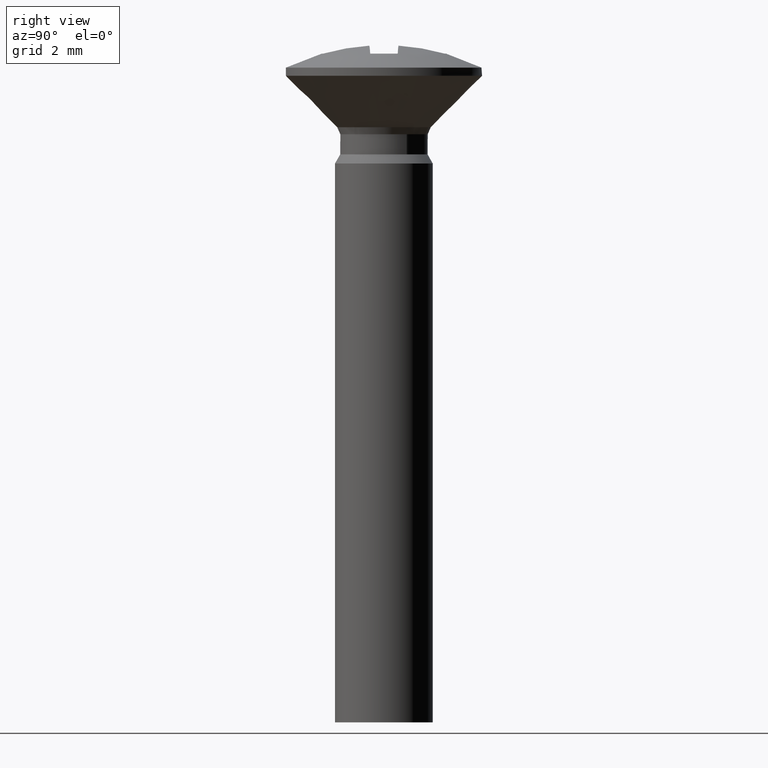
[diagram: clean part render]
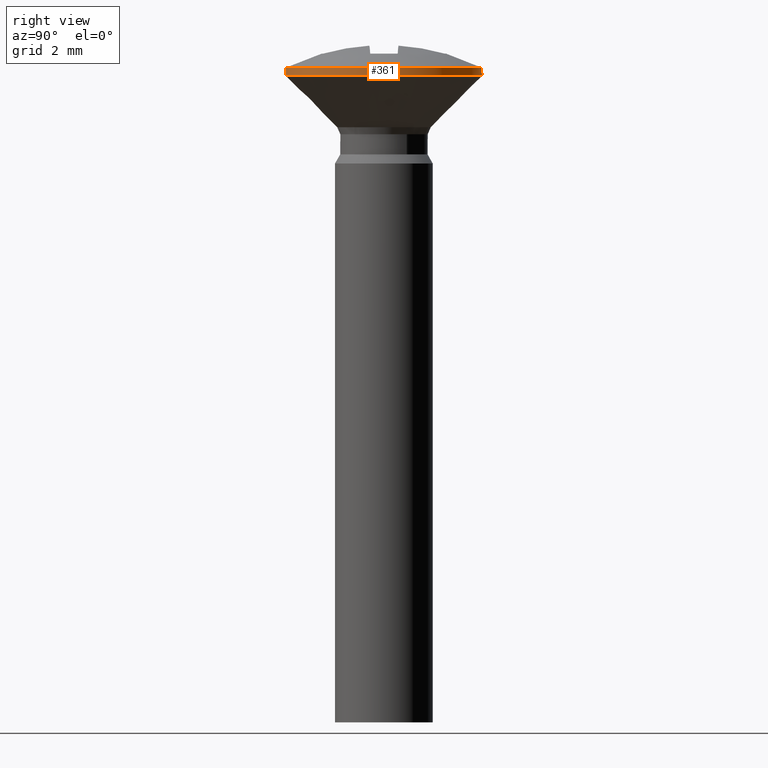
[diagram: same view with one face highlighted and labeled with its STEP entity id]
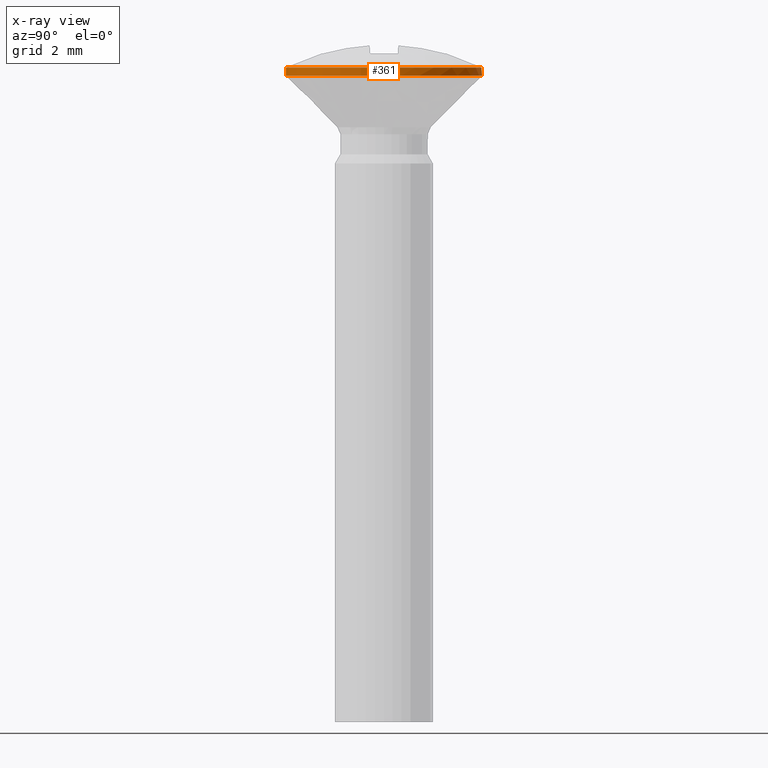
[diagram: x-ray of the same camera — body ghosted, the highlighted face saturated]
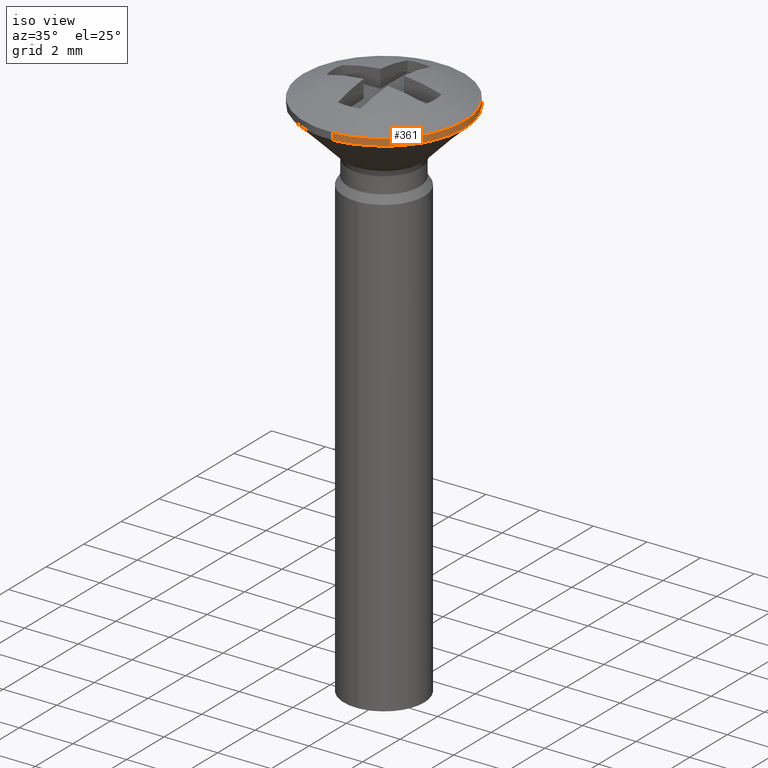
[diagram: same view with one face highlighted and labeled with its STEP entity id]
A machine part, right view. The second image highlights one B-rep face of the part: STEP entity #361.
The next image is the same camera in x-ray: the body ghosted, the highlighted face saturated — about 0% of this face is hidden behind the body in this view.
A second angle (iso view) of the same face is appended — the face is thin or edge-on in the first view.
In plain terms, the highlighted face is a freeform B-spline surface patch.
Its self-contained STEP definition (entity closure, byte-faithful):
#66=CARTESIAN_POINT('',(0.183145739371230,-2.994406369537615,-0.249999999999993));
#67=VERTEX_POINT('',#66);
#124=CARTESIAN_POINT('',(0.751138588778761,2.904441413269793,-0.250001816337524));
#125=VERTEX_POINT('',#124);
#131=CARTESIAN_POINT('',(3.0,0.0,-0.249999999999993));
#132=VERTEX_POINT('',#131);
#133=CARTESIAN_POINT('',(0.751138588778761,2.904441413269793,-0.250001816337524));
#134=CARTESIAN_POINT('',(2.999999772627413,2.322848104502776,-0.250000908168758));
#135=CARTESIAN_POINT('',(3.0,0.0,-0.249999999999993));
#143=(BOUNDED_CURVE()B_SPLINE_CURVE(2,(#133,#134,#135),.UNSPECIFIED.,.F.,.U.)B_SPLINE_CURVE_WITH_KNOTS((3,3),(0.292726175648459,0.500000000000000),.UNSPECIFIED.)CURVE()GEOMETRIC_REPRESENTATION_ITEM()RATIONAL_B_SPLINE_CURVE((0.916996237852994,0.757163609639613,1.0))REPRESENTATION_ITEM(''));
#144=EDGE_CURVE('',#125,#132,#143,.T.);
#146=CARTESIAN_POINT('',(3.0,0.0,-0.249999999999993));
#147=CARTESIAN_POINT('',(3.000000060375853,-2.822119187839429,-0.249999999999993));
#148=CARTESIAN_POINT('',(0.183145739371230,-2.994406369537616,-0.249999999999993));
#156=(BOUNDED_CURVE()B_SPLINE_CURVE(2,(#146,#147,#148),.UNSPECIFIED.,.F.,.U.)B_SPLINE_CURVE_WITH_KNOTS((3,3),(0.500000000000000,0.739332962241107),.UNSPECIFIED.)CURVE()GEOMETRIC_REPRESENTATION_ITEM()RATIONAL_B_SPLINE_CURVE((1.0,0.719603993284175,0.976072041671355))REPRESENTATION_ITEM(''));
#157=EDGE_CURVE('',#132,#67,#156,.T.);
#195=CARTESIAN_POINT('',(-0.354102937449944,2.979030543224859,-0.249999999999993));
#196=VERTEX_POINT('',#195);
#210=CARTESIAN_POINT('',(-0.354102937449944,2.979030543224859,-0.249999999999993));
#211=CARTESIAN_POINT('',(-0.177672627309790,3.000001377348288,-0.250000286313322));
#212=CARTESIAN_POINT('',(-0.000000303757906,3.000000781652118,-0.250000576973715));
#213=CARTESIAN_POINT('',(0.381647315832808,2.999999502071705,-0.250001201324458));
#214=CARTESIAN_POINT('',(0.751138588778761,2.904441413269793,-0.250001816337524));
#222=(BOUNDED_CURVE()B_SPLINE_CURVE(2,(#210,#211,#212,#213,#214),.UNSPECIFIED.,.F.,.U.)B_SPLINE_CURVE_WITH_KNOTS((3,2,3),(0.229562473514940,0.250000000000000,0.292726175648459),.UNSPECIFIED.)CURVE()GEOMETRIC_REPRESENTATION_ITEM()RATIONAL_B_SPLINE_CURVE((0.956026754186506,0.976055948332823,1.0,0.949943171546935,0.916996237852994))REPRESENTATION_ITEM(''));
#223=EDGE_CURVE('',#196,#125,#222,.T.);
#290=CARTESIAN_POINT('',(-0.354103170904791,2.979032507361668,0.006249370090547));
#291=CARTESIAN_POINT('',(-0.268844540423030,2.989166787979952,0.006249370090547));
#292=CARTESIAN_POINT('',(-0.183145860107981,2.994408343811458,0.006249370090547));
#293=CARTESIAN_POINT('',(2.811262483703477,3.177554203919440,0.006249370090547));
#294=CARTESIAN_POINT('',(2.994408343811458,0.183145860107981,0.006249370090547));
#295=CARTESIAN_POINT('',(3.177554203919440,-2.811262483703477,0.006249370090547));
#296=CARTESIAN_POINT('',(0.183145860107981,-2.994408343811458,0.006249370090547));
#297=CARTESIAN_POINT('',(-0.354103170904791,2.979032507361668,-0.256406234252257));
#298=CARTESIAN_POINT('',(-0.268844540423030,2.989166787979952,-0.256406234252257));
#299=CARTESIAN_POINT('',(-0.183145860107981,2.994408343811458,-0.256406234252257));
#300=CARTESIAN_POINT('',(2.811262483703477,3.177554203919440,-0.256406234252257));
#301=CARTESIAN_POINT('',(2.994408343811458,0.183145860107981,-0.256406234252257));
#302=CARTESIAN_POINT('',(3.177554203919440,-2.811262483703477,-0.256406234252257));
#303=CARTESIAN_POINT('',(0.183145860107981,-2.994408343811458,-0.256406234252257));
#311=(BOUNDED_SURFACE()B_SPLINE_SURFACE(2,1,((#290,#297),(#291,#298),(#292,#299),(#293,#300),(#294,#301),(#295,#302),(#296,#303)),.UNSPECIFIED.,.F.,.F.,.U.)B_SPLINE_SURFACE_WITH_KNOTS((3,2,2,3),(2,2),(0.0,0.198822772114696,5.169392074982079,10.139961377849460),(0.0,0.262655604342803),.UNSPECIFIED.)GEOMETRIC_REPRESENTATION_ITEM()RATIONAL_B_SPLINE_SURFACE(((0.977505800795127,0.977505800795127),(0.988284271247462,0.988284271247462),(1.0,1.0),(0.707106781186548,0.707106781186548),(1.0,1.0),(0.707106781186548,0.707106781186548),(1.0,1.0)))REPRESENTATION_ITEM('')SURFACE());
#312=ORIENTED_EDGE('',*,*,#223,.F.);
#313=CARTESIAN_POINT('',(-0.354103404384466,2.979034471495527,-0.000000614545808));
#314=VERTEX_POINT('',#313);
#315=CARTESIAN_POINT('',(-0.354103404384466,2.979034471495527,-0.000000614545808));
#316=CARTESIAN_POINT('',(-0.354102937449944,2.979030543224859,-0.249999999999993));
#317=QUASI_UNIFORM_CURVE('',1,(#315,#316),.UNSPECIFIED.,.F.,.U.);
#318=EDGE_CURVE('',#314,#196,#317,.T.);
#319=ORIENTED_EDGE('',*,*,#318,.F.);
#320=CARTESIAN_POINT('',(3.000007911848910,0.0,-0.000000614545808));
#321=VERTEX_POINT('',#320);
#322=CARTESIAN_POINT('',(-0.354103404384466,2.979034471495528,-0.000000614545808));
#323=CARTESIAN_POINT('',(-0.177672600207381,3.000005999371665,-0.000000614545808));
#324=CARTESIAN_POINT('',(0.000000220413464,3.000006057533757,-0.000000614545808));
#325=CARTESIAN_POINT('',(3.000008015528745,3.000007039601425,-0.000000614545808));
#326=CARTESIAN_POINT('',(3.000007911848910,0.0,-0.000000614545808));
#334=(BOUNDED_CURVE()B_SPLINE_CURVE(2,(#322,#323,#324,#325,#326),.UNSPECIFIED.,.F.,.U.)B_SPLINE_CURVE_WITH_KNOTS((3,2,3),(0.229562473514940,0.250000000000000,0.500000000000000),.UNSPECIFIED.)CURVE()GEOMETRIC_REPRESENTATION_ITEM()RATIONAL_B_SPLINE_CURVE((0.956026754186505,0.976055948332822,1.0,0.707106781186547,1.0))REPRESENTATION_ITEM(''));
#335=EDGE_CURVE('',#314,#321,#334,.T.);
#336=ORIENTED_EDGE('',*,*,#335,.T.);
#337=CARTESIAN_POINT('',(0.183145980874648,-2.994410318083473,-0.000000614545808));
#338=VERTEX_POINT('',#337);
#339=CARTESIAN_POINT('',(3.000007911848910,0.0,-0.000000614545808));
#340=CARTESIAN_POINT('',(3.000007851473057,-2.822124656290762,-0.000000614545808));
#341=CARTESIAN_POINT('',(0.183145980874648,-2.994410318083473,-0.000000614545808));
#349=(BOUNDED_CURVE()B_SPLINE_CURVE(2,(#339,#340,#341),.UNSPECIFIED.,.F.,.U.)B_SPLINE_CURVE_WITH_KNOTS((3,3),(0.500000000000000,0.739332962241106),.UNSPECIFIED.)CURVE()GEOMETRIC_REPRESENTATION_ITEM()RATIONAL_B_SPLINE_CURVE((1.0,0.719603993284176,0.976072041671354))REPRESENTATION_ITEM(''));
#350=EDGE_CURVE('',#321,#338,#349,.T.);
#351=ORIENTED_EDGE('',*,*,#350,.T.);
#352=CARTESIAN_POINT('',(0.183145980874648,-2.994410318083473,-0.000000614545808));
#353=CARTESIAN_POINT('',(0.183145739371230,-2.994406369537615,-0.249999999999993));
#354=QUASI_UNIFORM_CURVE('',1,(#352,#353),.UNSPECIFIED.,.F.,.U.);
#355=EDGE_CURVE('',#338,#67,#354,.T.);
#356=ORIENTED_EDGE('',*,*,#355,.T.);
#357=ORIENTED_EDGE('',*,*,#157,.F.);
#358=ORIENTED_EDGE('',*,*,#144,.F.);
#359=EDGE_LOOP('',(#312,#319,#336,#351,#356,#357,#358));
#360=FACE_OUTER_BOUND('',#359,.T.);
#361=ADVANCED_FACE('',(#360),#311,.T.);